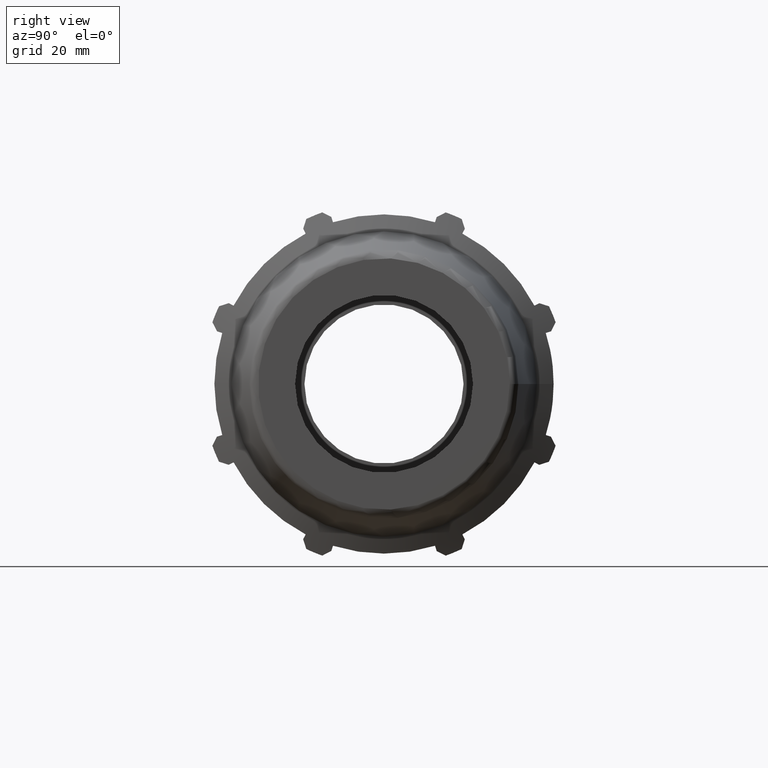
[diagram: clean part render]
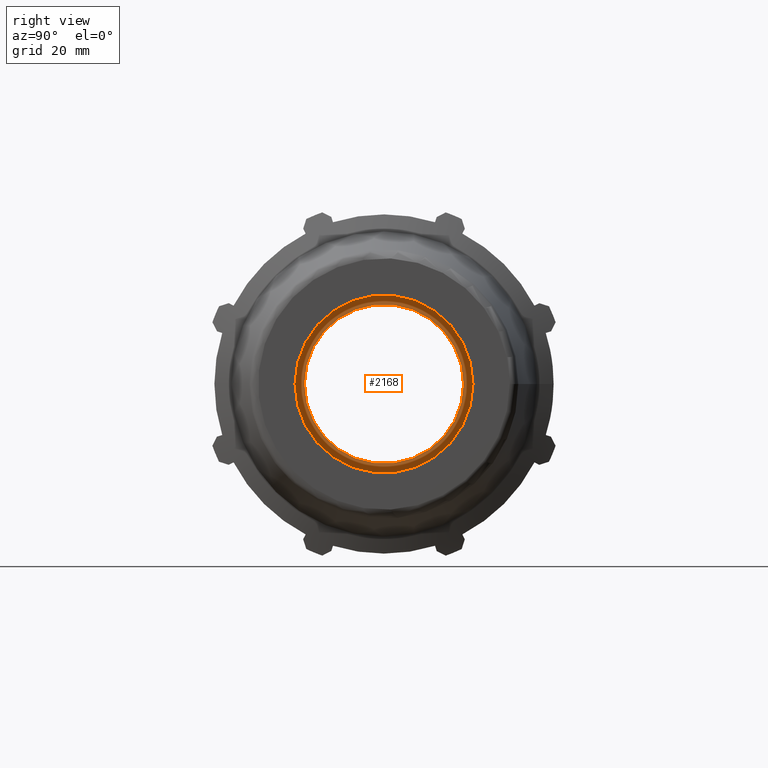
[diagram: same view with one face highlighted and labeled with its STEP entity id]
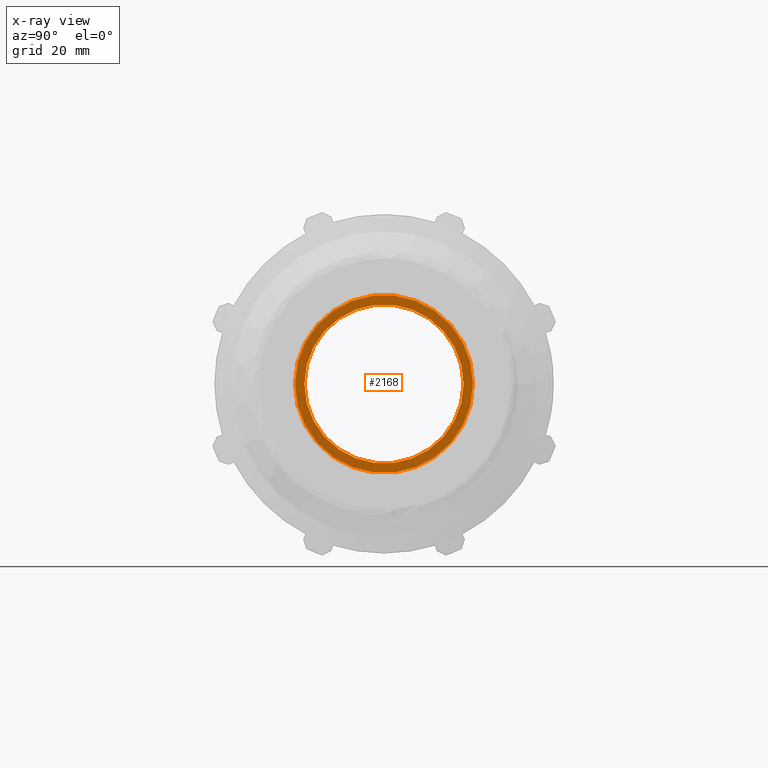
[diagram: x-ray of the same camera — body ghosted, the highlighted face saturated]
A machine part, right view. The second image highlights one B-rep face of the part: STEP entity #2168.
The next image is the same camera in x-ray: the body ghosted, the highlighted face saturated — about 0% of this face is hidden behind the body in this view.
In plain terms, the highlighted planar face has unit normal (1, 0, 0).
Its self-contained STEP definition (entity closure, byte-faithful):
#459=PLANE('',#2380);
#481=FACE_BOUND('',#737,.T.);
#598=FACE_OUTER_BOUND('',#736,.T.);
#736=EDGE_LOOP('',(#1914));
#737=EDGE_LOOP('',(#1915));
#815=CIRCLE('',#2318,20.);
#837=CIRCLE('',#2381,17.8842);
#1009=VERTEX_POINT('',#3691);
#1039=VERTEX_POINT('',#3842);
#1269=EDGE_CURVE('',#1009,#1009,#815,.T.);
#1333=EDGE_CURVE('',#1039,#1039,#837,.T.);
#1914=ORIENTED_EDGE('',*,*,#1269,.T.);
#1915=ORIENTED_EDGE('',*,*,#1333,.F.);
#2168=ADVANCED_FACE('',(#598,#481),#459,.T.);
#2318=AXIS2_PLACEMENT_3D('',#3692,#2785,#2786);
#2380=AXIS2_PLACEMENT_3D('',#3841,#2943,#2944);
#2381=AXIS2_PLACEMENT_3D('',#3843,#2945,#2946);
#2785=DIRECTION('center_axis',(1.,0.,0.));
#2786=DIRECTION('ref_axis',(0.,0.,-1.));
#2943=DIRECTION('center_axis',(1.,0.,0.));
#2944=DIRECTION('ref_axis',(0.,0.,-1.));
#2945=DIRECTION('center_axis',(1.,0.,0.));
#2946=DIRECTION('ref_axis',(0.,0.,-1.));
#3691=CARTESIAN_POINT('',(32.,20.,0.));
#3692=CARTESIAN_POINT('Origin',(32.,0.,0.));
#3841=CARTESIAN_POINT('Origin',(32.,17.8842,0.));
#3842=CARTESIAN_POINT('',(32.,17.8842,0.));
#3843=CARTESIAN_POINT('Origin',(32.,0.,0.));